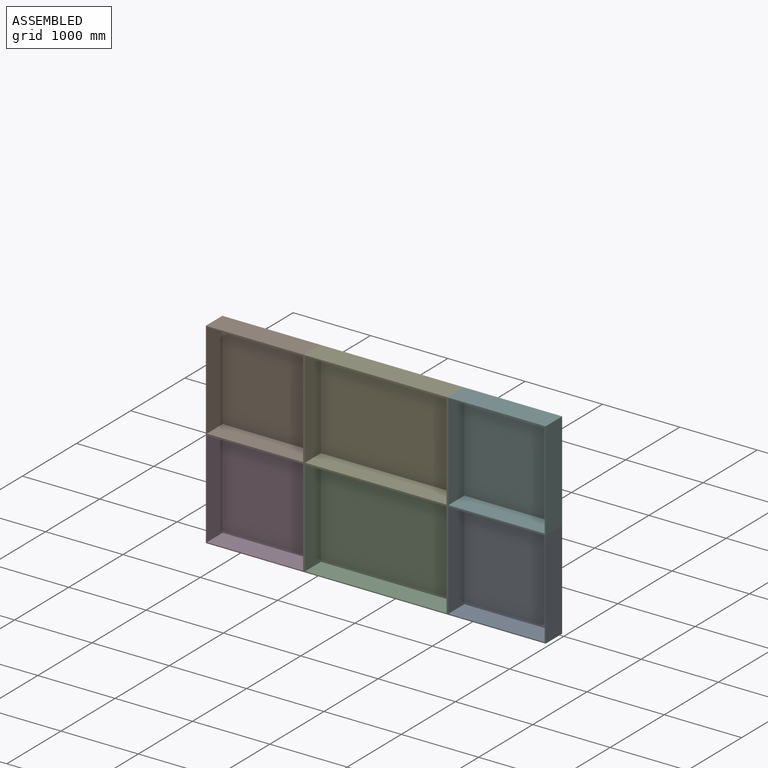
[diagram: assembled view]
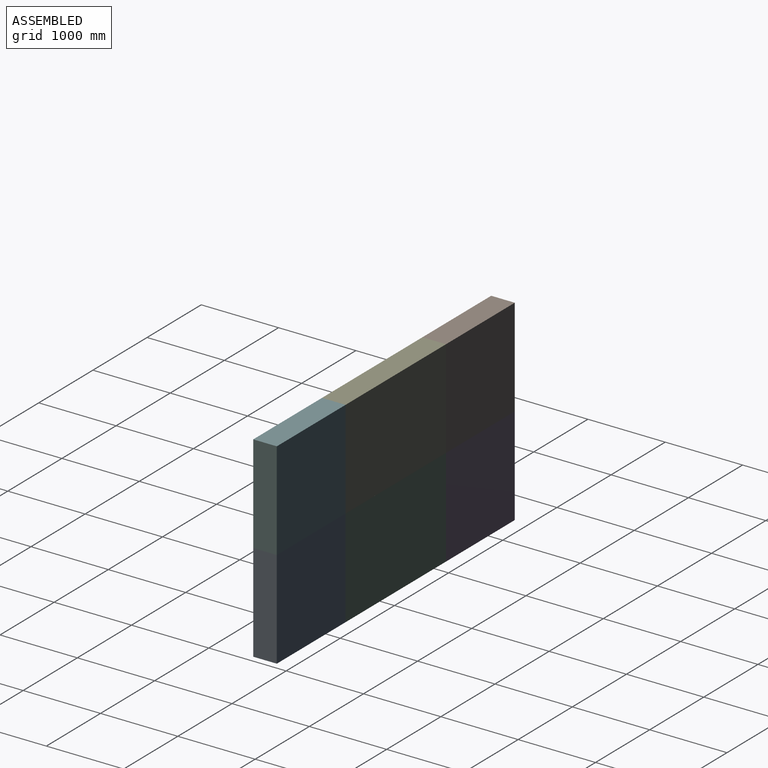
[diagram: assembled view, second angle]
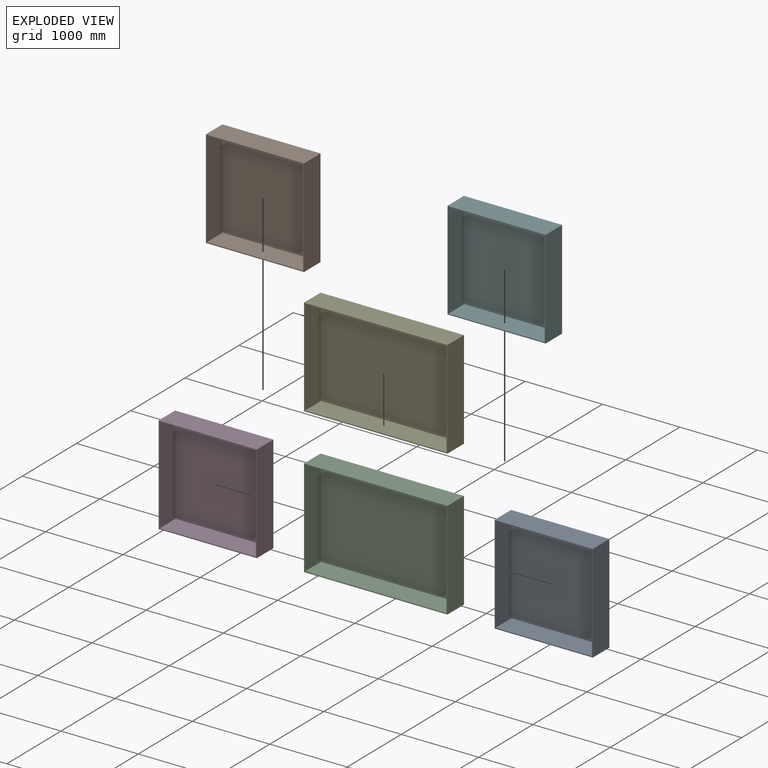
[diagram: exploded view]
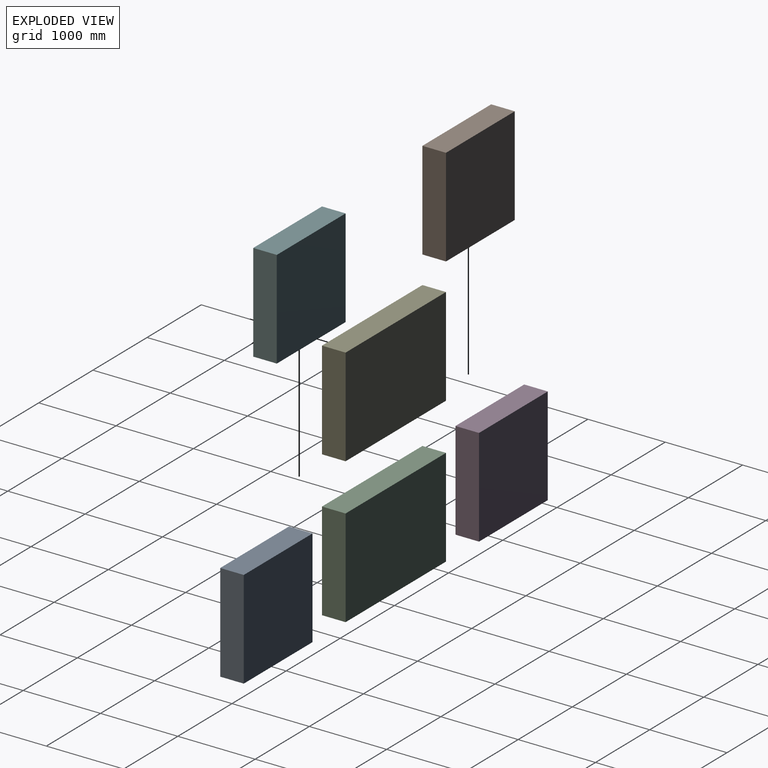
[diagram: exploded view, second angle]
ASSEMBLY  parts=6 mates=5
PART A: 11 faces, bbox 1270x304.8x1270 mm
  f0: plane 1270x1270mm, normal (0,1,0), area 1612900mm2, adj f1,f3,f4,f5
  f1: plane 1270x304.8mm, normal (-1,0,0), area 387096mm2, adj f0,f2,f4,f5
  f2: plane 1270x1270mm, normal (0,-1,0), area 63870.8mm2, adj f1,f3,f4,f5,f6,f7,f8,f9
  f3: plane 1270x304.8mm, normal (1,0,0), area 387096mm2, adj f0,f2,f4,f5
  f4: plane 1270x304.8mm, normal (0,0,1), area 387096mm2, adj f0,f1,f2,f3
  f5: plane 1270x304.8mm, normal (0,0,-1), area 387096mm2, adj f0,f1,f2,f3
  f6: plane 1244.6x292.1mm, normal (0,0,1), area 363547.7mm2, adj f2,f7,f9,f10
  f7: plane 1244.6x292.1mm, normal (-1,0,0), area 363547.7mm2, adj f2,f6,f8,f10
  f8: plane 1244.6x292.1mm, normal (0,0,-1), area 363547.7mm2, adj f2,f7,f9,f10
  f9: plane 1244.6x292.1mm, normal (1,0,0), area 363547.7mm2, adj f2,f6,f8,f10
  f10: plane 1244.6x1244.6mm, normal (0,-1,0), area 1549029.2mm2, adj f6,f7,f8,f9
PART B: same geometry as A
PART C: 11 faces, bbox 1854.2x304.8x1270 mm
  f0: plane 1854.2x1270mm, normal (0,1,0), area 2354834mm2, adj f1,f3,f4,f5
  f1: plane 1270x304.8mm, normal (-1,0,0), area 387096mm2, adj f0,f2,f4,f5
  f2: plane 1854.2x1270mm, normal (0,-1,0), area 78709.5mm2, adj f1,f3,f4,f5,f6,f7,f8,f9
  f3: plane 1270x304.8mm, normal (1,0,0), area 387096mm2, adj f0,f2,f4,f5
  f4: plane 1854.2x304.8mm, normal (0,0,1), area 565160.2mm2, adj f0,f1,f2,f3
  f5: plane 1854.2x304.8mm, normal (0,0,-1), area 565160.2mm2, adj f0,f1,f2,f3
  f6: plane 1828.8x292.1mm, normal (0,0,1), area 534192.5mm2, adj f2,f7,f9,f10
  f7: plane 1244.6x292.1mm, normal (-1,0,0), area 363547.7mm2, adj f2,f6,f8,f10
  f8: plane 1828.8x292.1mm, normal (0,0,-1), area 534192.5mm2, adj f2,f7,f9,f10
  f9: plane 1244.6x292.1mm, normal (1,0,0), area 363547.7mm2, adj f2,f6,f8,f10
  f10: plane 1828.8x1244.6mm, normal (0,-1,0), area 2276124.5mm2, adj f6,f7,f8,f9
PART D: same geometry as A
PART E: same geometry as C
PART F: same geometry as A
PLACE A t=(-2872.32,-1725.43,-530.47)mm
PLACE B t=(-5996.52,-1725.43,739.53)mm
PLACE C t=(-635.73,-2002.27,-530.47)mm
PLACE D t=(-5996.52,-1725.43,-530.47)mm
PLACE E t=(-635.73,-2002.27,739.53)mm
PLACE F t=(-2872.32,-1725.43,739.53)mm
MATE fastened C.f1 <-> D.f3  axis (-1,0,0) through (-2081.16,909.78,-530.47)mm
MATE fastened F.f5 <-> A.f4  axis (0,0,-1) through (-226.96,604.98,739.53)mm
MATE fastened E.f5 <-> C.f4  axis (0,0,1) through (-2081.16,604.98,739.53)mm
MATE fastened A.f1 <-> C.f3  axis (-1,0,0) through (-226.96,909.78,-530.47)mm
MATE fastened B.f5 <-> D.f4  axis (0,0,-1) through (-3351.16,909.78,739.53)mm
